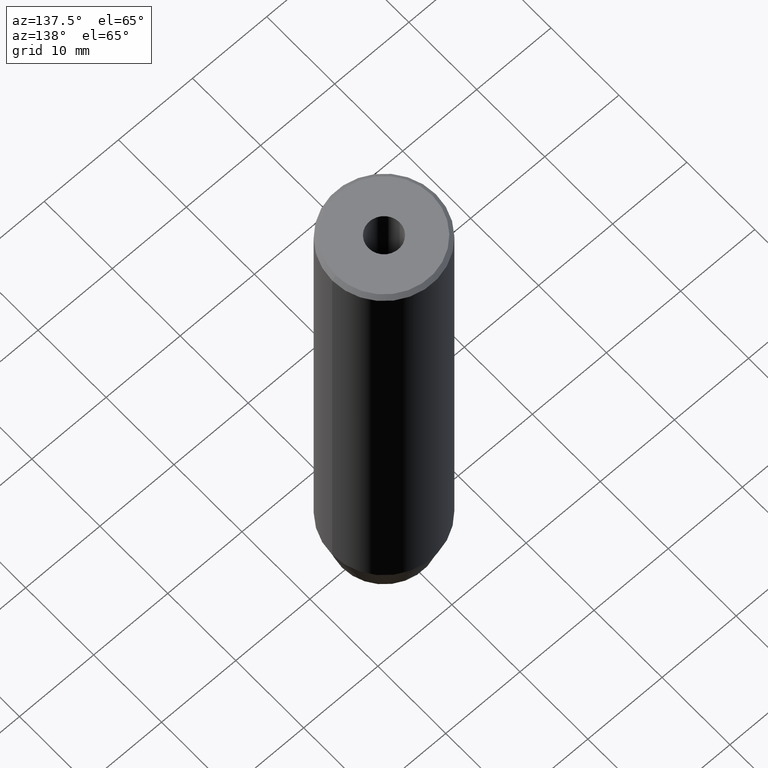
[diagram: clean part render]
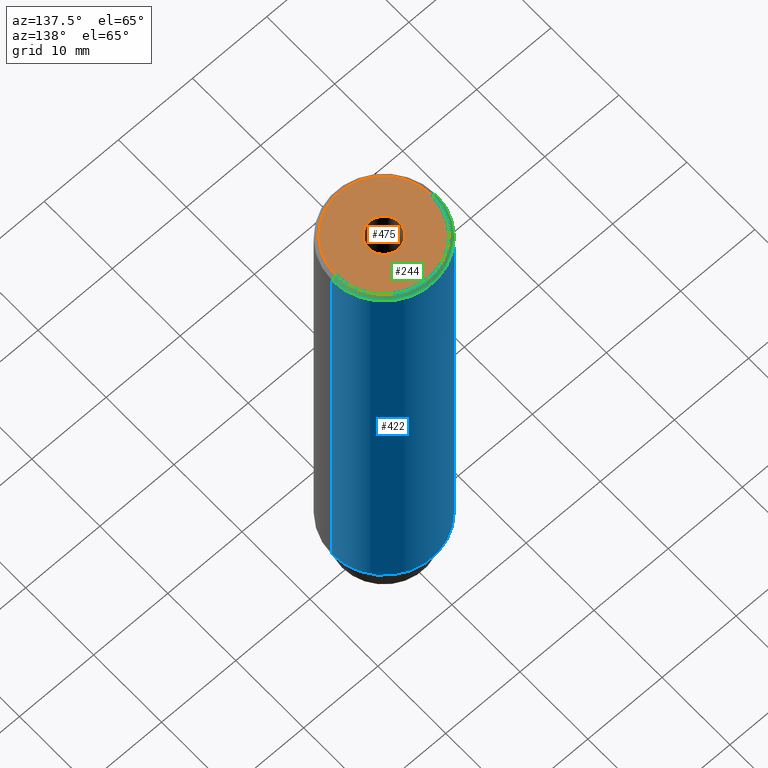
[diagram: same view with three faces highlighted in distinct colors, each labeled with its STEP entity id]
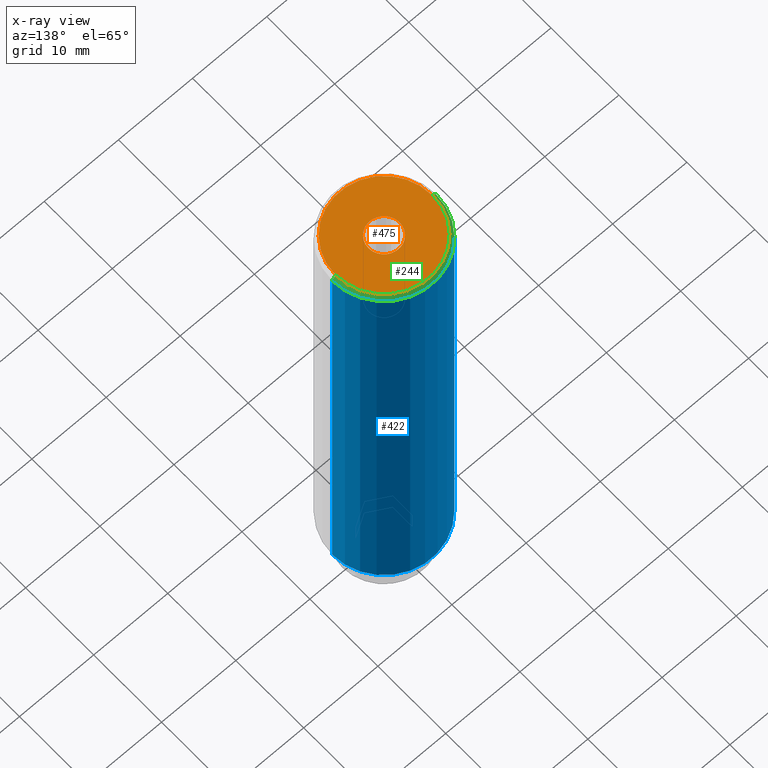
[diagram: x-ray of the same camera — body ghosted, the three highlighted faces saturated]
A machine part, auxiliary view with three faces highlighted in distinct colors.
The next image is the same camera in x-ray (body ghosted, the three faces saturated) — at least one of them is partly hidden behind the body in this view.
Their STEP definitions:

[orange] entity #475 — the highlighted planar face has unit normal (0, -0, 1).
#5 = EDGE_LOOP ( 'NONE', ( #406, #281 ) ) ;
#7 = CARTESIAN_POINT ( 'NONE',  ( -6.500000000000012434, 0.000000000000000000, 0.000000000000000000 ) ) ;
#37 = PLANE ( 'NONE',  #243 ) ;
#48 = CARTESIAN_POINT ( 'NONE',  ( 0.000000000000000000, 0.000000000000000000, 0.000000000000000000 ) ) ;
#52 = VERTEX_POINT ( 'NONE', #508 ) ;
#67 = EDGE_LOOP ( 'NONE', ( #340, #322 ) ) ;
#89 = DIRECTION ( 'NONE',  ( -0.000000000000000000, -0.000000000000000000, 1.000000000000000000 ) ) ;
#125 = DIRECTION ( 'NONE',  ( 1.000000000000000000, 0.000000000000000000, 0.000000000000000000 ) ) ;
#130 = AXIS2_PLACEMENT_3D ( 'NONE', #302, #218, #125 ) ;
#131 = CIRCLE ( 'NONE', #524, 2.099999999999998757 ) ;
#133 = CARTESIAN_POINT ( 'NONE',  ( 0.000000000000000000, 0.000000000000000000, 0.000000000000000000 ) ) ;
#142 = DIRECTION ( 'NONE',  ( -0.000000000000000000, -0.000000000000000000, 1.000000000000000000 ) ) ;
#145 = EDGE_CURVE ( 'NONE', #52, #190, #455, .T. ) ;
#177 = AXIS2_PLACEMENT_3D ( 'NONE', #48, #142, #312 ) ;
#178 = CARTESIAN_POINT ( 'NONE',  ( 2.099999999999998757, 0.000000000000000000, -1.990051048614449116E-16 ) ) ;
#190 = VERTEX_POINT ( 'NONE', #7 ) ;
#218 = DIRECTION ( 'NONE',  ( -0.000000000000000000, -0.000000000000000000, 1.000000000000000000 ) ) ;
#226 = CARTESIAN_POINT ( 'NONE',  ( -2.099999999999998757, 2.571758278209439985E-16, -1.990051048614449116E-16 ) ) ;
#238 = CARTESIAN_POINT ( 'NONE',  ( 0.000000000000000000, 0.000000000000000000, -1.990051048614449116E-16 ) ) ;
#243 = AXIS2_PLACEMENT_3D ( 'NONE', #133, #443, #583 ) ;
#252 = CIRCLE ( 'NONE', #561, 2.099999999999998757 ) ;
#256 = EDGE_CURVE ( 'NONE', #190, #52, #261, .T. ) ;
#261 = CIRCLE ( 'NONE', #130, 6.500000000000012434 ) ;
#262 = FACE_OUTER_BOUND ( 'NONE', #67, .T. ) ;
#273 = DIRECTION ( 'NONE',  ( -0.000000000000000000, -0.000000000000000000, 1.000000000000000000 ) ) ;
#281 = ORIENTED_EDGE ( 'NONE', *, *, #438, .F. ) ;
#302 = CARTESIAN_POINT ( 'NONE',  ( 0.000000000000000000, 0.000000000000000000, 0.000000000000000000 ) ) ;
#306 = CARTESIAN_POINT ( 'NONE',  ( 0.000000000000000000, 0.000000000000000000, -1.990051048614449116E-16 ) ) ;
#312 = DIRECTION ( 'NONE',  ( 1.000000000000000000, 0.000000000000000000, 0.000000000000000000 ) ) ;
#322 = ORIENTED_EDGE ( 'NONE', *, *, #145, .T. ) ;
#340 = ORIENTED_EDGE ( 'NONE', *, *, #256, .T. ) ;
#406 = ORIENTED_EDGE ( 'NONE', *, *, #578, .F. ) ;
#438 = EDGE_CURVE ( 'NONE', #543, #469, #252, .T. ) ;
#443 = DIRECTION ( 'NONE',  ( 0.000000000000000000, -0.000000000000000000, 1.000000000000000000 ) ) ;
#453 = DIRECTION ( 'NONE',  ( 1.000000000000000000, 0.000000000000000000, 0.000000000000000000 ) ) ;
#455 = CIRCLE ( 'NONE', #177, 6.500000000000012434 ) ;
#469 = VERTEX_POINT ( 'NONE', #178 ) ;
#475 = ADVANCED_FACE ( 'NONE', ( #581, #262 ), #37, .T. ) ;
#508 = CARTESIAN_POINT ( 'NONE',  ( 6.500000000000012434, 8.266365894244642222E-16, 0.000000000000000000 ) ) ;
#524 = AXIS2_PLACEMENT_3D ( 'NONE', #238, #273, #453 ) ;
#543 = VERTEX_POINT ( 'NONE', #226 ) ;
#561 = AXIS2_PLACEMENT_3D ( 'NONE', #306, #89, #579 ) ;
#578 = EDGE_CURVE ( 'NONE', #469, #543, #131, .T. ) ;
#579 = DIRECTION ( 'NONE',  ( 1.000000000000000000, 0.000000000000000000, 0.000000000000000000 ) ) ;
#581 = FACE_BOUND ( 'NONE', #5, .T. ) ;
#583 = DIRECTION ( 'NONE',  ( 1.000000000000000000, 0.000000000000000000, 0.000000000000000000 ) ) ;

[blue] entity #422 — the highlighted cylindrical surface (partial cylindrical patch) has radius 7 mm, axis along (-0, -0, 1).
#24 = CIRCLE ( 'NONE', #50, 7.000000000000000000 ) ;
#29 = DIRECTION ( 'NONE',  ( -0.000000000000000000, -0.000000000000000000, 1.000000000000000000 ) ) ;
#33 = CIRCLE ( 'NONE', #314, 7.000000000000000000 ) ;
#38 = EDGE_CURVE ( 'NONE', #54, #403, #334, .T. ) ;
#43 = DIRECTION ( 'NONE',  ( 1.000000000000000000, 0.000000000000000000, 0.000000000000000000 ) ) ;
#50 = AXIS2_PLACEMENT_3D ( 'NONE', #404, #486, #43 ) ;
#54 = VERTEX_POINT ( 'NONE', #484 ) ;
#60 = ORIENTED_EDGE ( 'NONE', *, *, #91, .F. ) ;
#91 = EDGE_CURVE ( 'NONE', #157, #234, #526, .T. ) ;
#101 = CARTESIAN_POINT ( 'NONE',  ( 0.000000000000000000, 0.000000000000000000, -65.00000000000000000 ) ) ;
#124 = CARTESIAN_POINT ( 'NONE',  ( 7.000000000000000000, 0.000000000000000000, 0.000000000000000000 ) ) ;
#132 = CYLINDRICAL_SURFACE ( 'NONE', #550, 7.000000000000000000 ) ;
#139 = FACE_OUTER_BOUND ( 'NONE', #395, .T. ) ;
#157 = VERTEX_POINT ( 'NONE', #378 ) ;
#161 = ORIENTED_EDGE ( 'NONE', *, *, #216, .T. ) ;
#182 = CARTESIAN_POINT ( 'NONE',  ( 0.000000000000000000, 0.000000000000000000, 0.000000000000000000 ) ) ;
#216 = EDGE_CURVE ( 'NONE', #157, #54, #33, .T. ) ;
#234 = VERTEX_POINT ( 'NONE', #427 ) ;
#236 = DIRECTION ( 'NONE',  ( 1.000000000000000000, 0.000000000000000000, 0.000000000000000000 ) ) ;
#247 = ORIENTED_EDGE ( 'NONE', *, *, #448, .T. ) ;
#270 = CARTESIAN_POINT ( 'NONE',  ( -7.000000000000000000, 8.572527594031473190E-16, -0.4999999999999908962 ) ) ;
#275 = VECTOR ( 'NONE', #435, 1000.000000000000000 ) ;
#314 = AXIS2_PLACEMENT_3D ( 'NONE', #101, #382, #236 ) ;
#318 = DIRECTION ( 'NONE',  ( -0.000000000000000000, -0.000000000000000000, 1.000000000000000000 ) ) ;
#334 = LINE ( 'NONE', #559, #428 ) ;
#354 = DIRECTION ( 'NONE',  ( 1.000000000000000000, 0.000000000000000000, 0.000000000000000000 ) ) ;
#378 = CARTESIAN_POINT ( 'NONE',  ( 7.000000000000000000, 0.000000000000000000, -65.00000000000000000 ) ) ;
#382 = DIRECTION ( 'NONE',  ( -0.000000000000000000, -0.000000000000000000, 1.000000000000000000 ) ) ;
#395 = EDGE_LOOP ( 'NONE', ( #161, #494, #247, #60 ) ) ;
#403 = VERTEX_POINT ( 'NONE', #270 ) ;
#404 = CARTESIAN_POINT ( 'NONE',  ( 0.000000000000000000, 0.000000000000000000, -0.4999999999999908962 ) ) ;
#422 = ADVANCED_FACE ( 'NONE', ( #139 ), #132, .T. ) ;
#427 = CARTESIAN_POINT ( 'NONE',  ( 7.000000000000000000, 0.000000000000000000, -0.4999999999999908962 ) ) ;
#428 = VECTOR ( 'NONE', #29, 1000.000000000000000 ) ;
#435 = DIRECTION ( 'NONE',  ( -0.000000000000000000, -0.000000000000000000, 1.000000000000000000 ) ) ;
#448 = EDGE_CURVE ( 'NONE', #403, #234, #24, .T. ) ;
#484 = CARTESIAN_POINT ( 'NONE',  ( -7.000000000000000000, 8.572527594031473190E-16, -65.00000000000000000 ) ) ;
#486 = DIRECTION ( 'NONE',  ( 0.000000000000000000, 0.000000000000000000, -1.000000000000000000 ) ) ;
#494 = ORIENTED_EDGE ( 'NONE', *, *, #38, .T. ) ;
#526 = LINE ( 'NONE', #124, #275 ) ;
#550 = AXIS2_PLACEMENT_3D ( 'NONE', #182, #318, #354 ) ;
#559 = CARTESIAN_POINT ( 'NONE',  ( -7.000000000000000000, 8.572527594031473190E-16, 0.000000000000000000 ) ) ;

[green] entity #244 — the highlighted conical surface has half-angle 45 deg.
#7 = CARTESIAN_POINT ( 'NONE',  ( -6.500000000000012434, 0.000000000000000000, 0.000000000000000000 ) ) ;
#24 = CIRCLE ( 'NONE', #50, 7.000000000000000000 ) ;
#27 = LINE ( 'NONE', #518, #205 ) ;
#43 = DIRECTION ( 'NONE',  ( 1.000000000000000000, 0.000000000000000000, 0.000000000000000000 ) ) ;
#48 = CARTESIAN_POINT ( 'NONE',  ( 0.000000000000000000, 0.000000000000000000, 0.000000000000000000 ) ) ;
#50 = AXIS2_PLACEMENT_3D ( 'NONE', #404, #486, #43 ) ;
#52 = VERTEX_POINT ( 'NONE', #508 ) ;
#78 = CARTESIAN_POINT ( 'NONE',  ( -6.500000000000012434, 0.000000000000000000, 0.000000000000000000 ) ) ;
#106 = EDGE_CURVE ( 'NONE', #190, #403, #530, .T. ) ;
#114 = ORIENTED_EDGE ( 'NONE', *, *, #106, .F. ) ;
#142 = DIRECTION ( 'NONE',  ( -0.000000000000000000, -0.000000000000000000, 1.000000000000000000 ) ) ;
#145 = EDGE_CURVE ( 'NONE', #52, #190, #455, .T. ) ;
#159 = DIRECTION ( 'NONE',  ( 0.000000000000000000, 0.000000000000000000, -1.000000000000000000 ) ) ;
#162 = FACE_OUTER_BOUND ( 'NONE', #196, .T. ) ;
#177 = AXIS2_PLACEMENT_3D ( 'NONE', #48, #142, #312 ) ;
#190 = VERTEX_POINT ( 'NONE', #7 ) ;
#196 = EDGE_LOOP ( 'NONE', ( #410, #279, #336, #114 ) ) ;
#205 = VECTOR ( 'NONE', #483, 1000.000000000000114 ) ;
#232 = EDGE_CURVE ( 'NONE', #52, #234, #27, .T. ) ;
#234 = VERTEX_POINT ( 'NONE', #427 ) ;
#244 = ADVANCED_FACE ( 'NONE', ( #162 ), #447, .T. ) ;
#270 = CARTESIAN_POINT ( 'NONE',  ( -7.000000000000000000, 8.572527594031473190E-16, -0.4999999999999908962 ) ) ;
#279 = ORIENTED_EDGE ( 'NONE', *, *, #232, .T. ) ;
#289 = VECTOR ( 'NONE', #439, 1000.000000000000114 ) ;
#312 = DIRECTION ( 'NONE',  ( 1.000000000000000000, 0.000000000000000000, 0.000000000000000000 ) ) ;
#336 = ORIENTED_EDGE ( 'NONE', *, *, #448, .F. ) ;
#389 = DIRECTION ( 'NONE',  ( -1.000000000000000000, 0.000000000000000000, 0.000000000000000000 ) ) ;
#403 = VERTEX_POINT ( 'NONE', #270 ) ;
#404 = CARTESIAN_POINT ( 'NONE',  ( 0.000000000000000000, 0.000000000000000000, -0.4999999999999908962 ) ) ;
#410 = ORIENTED_EDGE ( 'NONE', *, *, #145, .F. ) ;
#427 = CARTESIAN_POINT ( 'NONE',  ( 7.000000000000000000, 0.000000000000000000, -0.4999999999999908962 ) ) ;
#439 = DIRECTION ( 'NONE',  ( -0.7071067811865451302, 0.000000000000000000, -0.7071067811865500152 ) ) ;
#447 = CONICAL_SURFACE ( 'NONE', #512, 6.500000000000012434, 0.7853981633974447263 ) ;
#448 = EDGE_CURVE ( 'NONE', #403, #234, #24, .T. ) ;
#455 = CIRCLE ( 'NONE', #177, 6.500000000000012434 ) ;
#483 = DIRECTION ( 'NONE',  ( 0.7071067811865451302, 8.659560562354903276E-17, -0.7071067811865500152 ) ) ;
#486 = DIRECTION ( 'NONE',  ( 0.000000000000000000, 0.000000000000000000, -1.000000000000000000 ) ) ;
#508 = CARTESIAN_POINT ( 'NONE',  ( 6.500000000000012434, 8.266365894244642222E-16, 0.000000000000000000 ) ) ;
#512 = AXIS2_PLACEMENT_3D ( 'NONE', #529, #159, #389 ) ;
#518 = CARTESIAN_POINT ( 'NONE',  ( 6.500000000000012434, 7.960204194457811254E-16, 0.000000000000000000 ) ) ;
#529 = CARTESIAN_POINT ( 'NONE',  ( 0.000000000000000000, 0.000000000000000000, 0.000000000000000000 ) ) ;
#530 = LINE ( 'NONE', #78, #289 ) ;